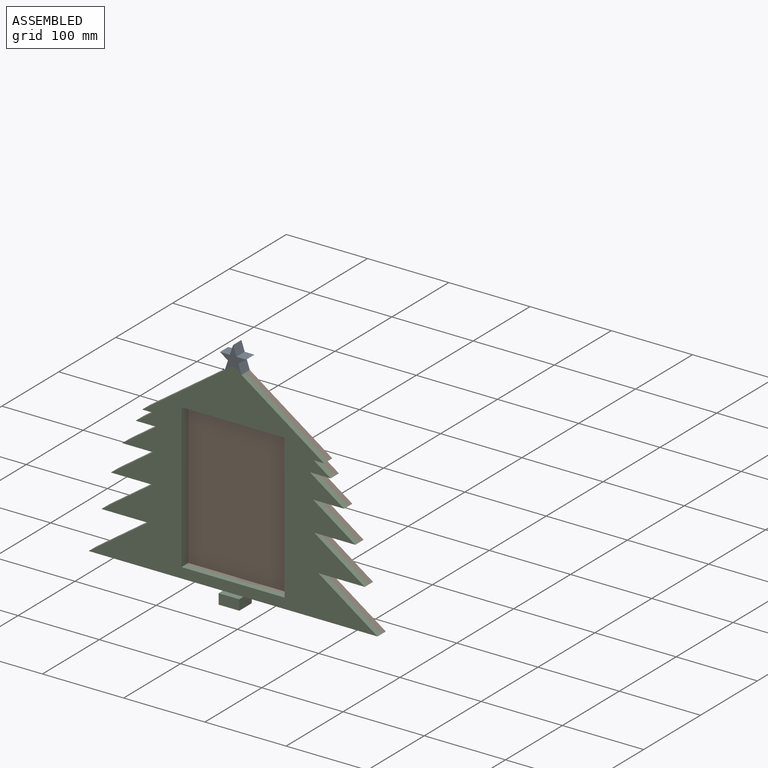
[diagram: assembled view]
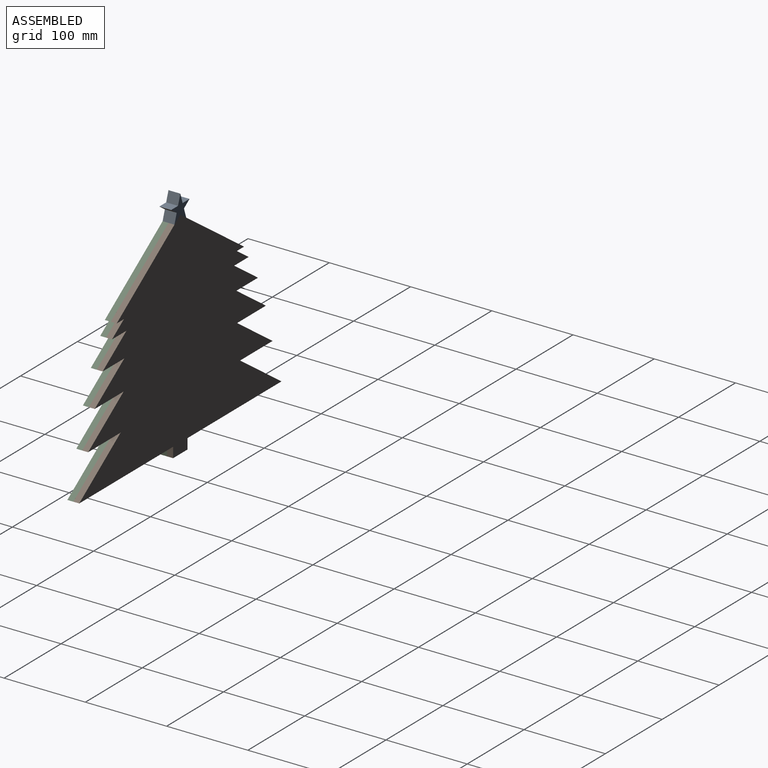
[diagram: assembled view, second angle]
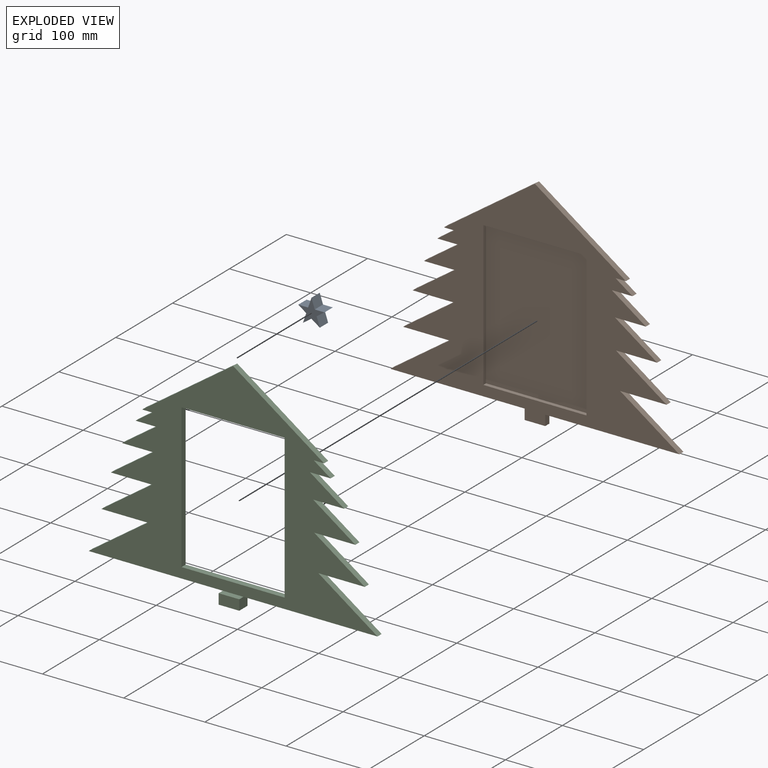
[diagram: exploded view]
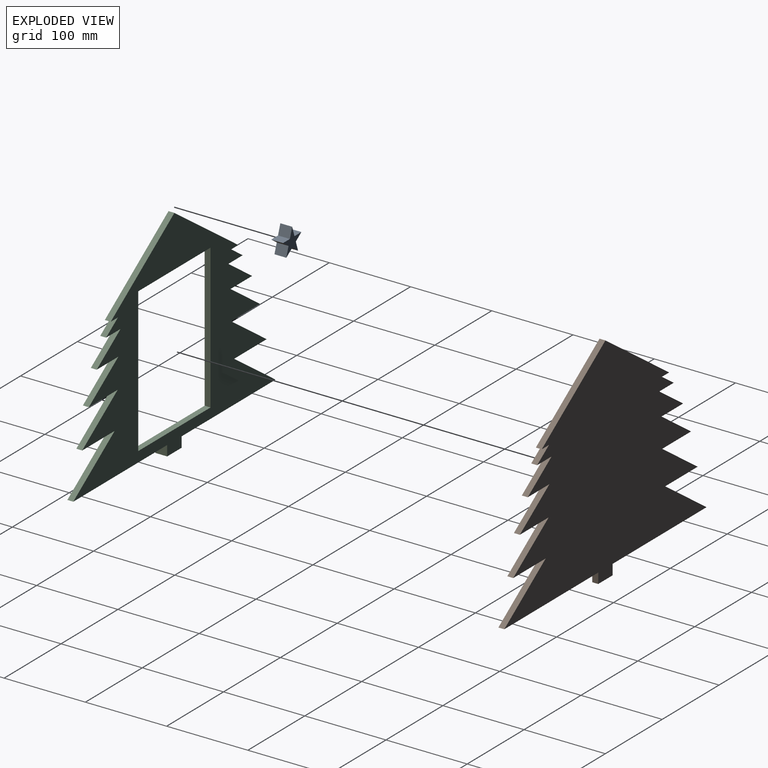
[diagram: exploded view, second angle]
ASSEMBLY  parts=3 mates=2
PART A: 12 faces, bbox 32.3x14.6x30.6 mm
  f0: plane 14.58x10.33mm, normal (-0.57,0,-0.82), area 183.9mm2, adj f1,f9,f10,f11
  f1: plane 14.58x11.71mm, normal (0.95,0,0.32), area 180.1mm2, adj f0,f2,f10,f11
  f2: plane 14.58x9.79mm, normal (0.57,0,-0.82), area 174.2mm2, adj f1,f3,f10,f11
  f3: plane 14.58x12.1mm, normal (0,0,1), area 176.3mm2, adj f2,f4,f10,f11
  f4: plane 14.58x12.04mm, normal (0.95,0,0.32), area 185.3mm2, adj f3,f5,f10,f11
  f5: plane 14.58x12.05mm, normal (-0.95,0,0.32), area 185.4mm2, adj f4,f6,f10,f11
  f6: plane 14.58x12.12mm, normal (0,0,1), area 176.7mm2, adj f5,f7,f10,f11
  f7: plane 14.58x9.8mm, normal (-0.57,0,-0.82), area 174.4mm2, adj f6,f8,f10,f11
  f8: plane 14.58x11.68mm, normal (-0.95,0,0.32), area 179.7mm2, adj f7,f9,f10,f11
  f9: plane 14.58x10.31mm, normal (0.57,0,-0.82), area 183.5mm2, adj f0,f8,f10,f11
  f10: plane 32.34x30.6mm, normal (0,1,0), area 324.2mm2, adj f0,f1,f2,f3,f4,f5,f6,f7
  f11: plane 32.34x30.6mm, normal (0,-1,0), area 324.2mm2, adj f0,f1,f2,f3,f4,f5,f6,f7
PART B: 34 faces, bbox 355.6x7.3x266.1 mm
  f0: plane 177.8x4.75mm, normal (-1,0,0), area 844.5mm2, adj f1,f30,f31,f33
  f1: plane 127x4.75mm, normal (0,0,1), area 603.2mm2, adj f0,f2,f31,f33
  f2: plane 177.8x4.75mm, normal (1,0,0), area 844.5mm2, adj f1,f30,f31,f33
  f3: plane 12.7x7.29mm, normal (1,0,0), area 92.6mm2, adj f4,f29,f31,f32
  f4: plane 165.1x7.29mm, normal (0,0,-1), area 1203.5mm2, adj f3,f5,f31,f32
  f5: plane 72.82x50.99mm, normal (0.57,0,0.82), area 648.1mm2, adj f4,f6,f31,f32
  f6: plane 57.15x7.29mm, normal (0,0,-1), area 416.6mm2, adj f5,f7,f31,f32
  f7: plane 62.42x43.71mm, normal (0.57,0,0.82), area 555.5mm2, adj f6,f8,f31,f32
  f8: plane 50.8x7.29mm, normal (0,0,-1), area 370.3mm2, adj f7,f9,f31,f32
  f9: plane 52.02x36.42mm, normal (0.57,0,0.82), area 462.9mm2, adj f8,f10,f31,f32
  f10: plane 38.1x7.29mm, normal (0,0,-1), area 277.7mm2, adj f9,f11,f31,f32
  f11: plane 41.93x29.36mm, normal (0.57,0,0.82), area 373.1mm2, adj f10,f12,f31,f32
  f12: plane 25.4x7.29mm, normal (0,0,-1), area 185.2mm2, adj f11,f13,f31,f32
  f13: plane 20.81x14.57mm, normal (0.57,0,0.82), area 185.2mm2, adj f12,f14,f31,f32
  f14: plane 12.7x7.29mm, normal (0,0,-1), area 92.6mm2, adj f13,f15,f31,f32
  f15: plane 111.96x78.39mm, normal (0.57,0,0.82), area 996.3mm2, adj f14,f16,f31,f32
  f16: plane 111.96x78.39mm, normal (-0.57,0,0.82), area 996.3mm2, adj f15,f17,f31,f32
  f17: plane 12.7x7.29mm, normal (0,0,-1), area 92.6mm2, adj f16,f18,f31,f32
  f18: plane 20.81x14.57mm, normal (-0.57,0,0.82), area 185.2mm2, adj f17,f19,f31,f32
  f19: plane 25.4x7.29mm, normal (0,0,-1), area 185.2mm2, adj f18,f20,f31,f32
  f20: plane 41.93x29.36mm, normal (-0.57,0,0.82), area 373.1mm2, adj f19,f21,f31,f32
  f21: plane 38.1x7.29mm, normal (0,0,-1), area 277.7mm2, adj f20,f22,f31,f32
  f22: plane 52.02x36.42mm, normal (-0.57,0,0.82), area 462.9mm2, adj f21,f23,f31,f32
  f23: plane 50.8x7.29mm, normal (0,0,-1), area 370.3mm2, adj f22,f24,f31,f32
  f24: plane 62.42x43.71mm, normal (-0.57,0,0.82), area 555.5mm2, adj f23,f25,f31,f32
  f25: plane 57.15x7.29mm, normal (0,0,-1), area 416.6mm2, adj f24,f26,f31,f32
  f26: plane 72.82x50.99mm, normal (-0.57,0,0.82), area 648.1mm2, adj f25,f27,f31,f32
  f27: plane 165.1x7.29mm, normal (0,0,-1), area 1203.5mm2, adj f26,f28,f31,f32
  f28: plane 12.7x7.29mm, normal (-1,0,0), area 92.6mm2, adj f27,f29,f31,f32
  f29: plane 25.4x7.29mm, normal (0,0,-1), area 185.2mm2, adj f3,f28,f31,f32
  f30: plane 127x4.75mm, normal (0,0,-1), area 603.2mm2, adj f0,f2,f31,f33
  f31: plane 355.6x266.14mm, normal (0,-1,0), area 31435.2mm2, adj f0,f1,f2,f3,f4,f5,f6,f7
  f32: plane 355.6x266.14mm, normal (0,1,0), area 54015.8mm2, adj f3,f4,f5,f6,f7,f8,f9,f10
  f33: plane 177.8x127mm, normal (0,-1,0), area 22580.6mm2, adj f0,f1,f2,f30
PART C: 35 faces, bbox 355.6x14.6x266.1 mm
  f0: plane 355.6x253.44mm, normal (0,-1,0), area 31112.7mm2, adj f1,f2,f3,f6,f7,f8,f9,f10
  f1: plane 177.8x7.29mm, normal (-1,0,0), area 1296.1mm2, adj f0,f2,f31,f32
  f2: plane 127x7.29mm, normal (0,0,1), area 925.8mm2, adj f0,f1,f3,f32
  f3: plane 177.8x7.29mm, normal (1,0,0), area 1296.1mm2, adj f0,f2,f31,f32
  f4: plane 25.4x14.58mm, normal (0,0,-1), area 370.3mm2, adj f5,f30,f32,f34
  f5: plane 14.58x12.7mm, normal (1,0,0), area 185.2mm2, adj f4,f6,f32,f33,f34
  f6: plane 165.1x7.29mm, normal (0,0,-1), area 1203.5mm2, adj f0,f5,f7,f32
  f7: plane 72.82x50.99mm, normal (0.57,0,0.82), area 648.1mm2, adj f0,f6,f8,f32
  f8: plane 57.15x7.29mm, normal (0,0,-1), area 416.6mm2, adj f0,f7,f9,f32
  f9: plane 62.42x43.71mm, normal (0.57,0,0.82), area 555.5mm2, adj f0,f8,f10,f32
  f10: plane 50.8x7.29mm, normal (0,0,-1), area 370.3mm2, adj f0,f9,f11,f32
  f11: plane 52.02x36.42mm, normal (0.57,0,0.82), area 462.9mm2, adj f0,f10,f12,f32
  f12: plane 38.1x7.29mm, normal (0,0,-1), area 277.7mm2, adj f0,f11,f13,f32
  f13: plane 41.93x29.36mm, normal (0.57,0,0.82), area 373.1mm2, adj f0,f12,f14,f32
  f14: plane 25.4x7.29mm, normal (0,0,-1), area 185.2mm2, adj f0,f13,f15,f32
  f15: plane 20.81x14.57mm, normal (0.57,0,0.82), area 185.2mm2, adj f0,f14,f16,f32
  f16: plane 12.7x7.29mm, normal (0,0,-1), area 92.6mm2, adj f0,f15,f17,f32
  f17: plane 111.96x78.39mm, normal (0.57,0,0.82), area 996.3mm2, adj f0,f16,f18,f32
  f18: plane 111.96x78.39mm, normal (-0.57,0,0.82), area 996.3mm2, adj f0,f17,f19,f32
  f19: plane 12.7x7.29mm, normal (0,0,-1), area 92.6mm2, adj f0,f18,f20,f32
  f20: plane 20.81x14.57mm, normal (-0.57,0,0.82), area 185.2mm2, adj f0,f19,f21,f32
  f21: plane 25.4x7.29mm, normal (0,0,-1), area 185.2mm2, adj f0,f20,f22,f32
  f22: plane 41.93x29.36mm, normal (-0.57,0,0.82), area 373.1mm2, adj f0,f21,f23,f32
  f23: plane 38.1x7.29mm, normal (0,0,-1), area 277.7mm2, adj f0,f22,f24,f32
  f24: plane 52.02x36.42mm, normal (-0.57,0,0.82), area 462.9mm2, adj f0,f23,f25,f32
  f25: plane 50.8x7.29mm, normal (0,0,-1), area 370.3mm2, adj f0,f24,f26,f32
  f26: plane 62.42x43.71mm, normal (-0.57,0,0.82), area 555.5mm2, adj f0,f25,f27,f32
  f27: plane 57.15x7.29mm, normal (0,0,-1), area 416.6mm2, adj f0,f26,f28,f32
  f28: plane 72.82x50.99mm, normal (-0.57,0,0.82), area 648.1mm2, adj f0,f27,f29,f32
  f29: plane 165.1x7.29mm, normal (0,0,-1), area 1203.5mm2, adj f0,f28,f30,f32
  f30: plane 14.58x12.7mm, normal (-1,0,0), area 185.2mm2, adj f4,f29,f32,f33,f34
  f31: plane 127x7.29mm, normal (0,0,-1), area 925.8mm2, adj f0,f1,f3,f32
  f32: plane 355.6x266.14mm, normal (0,1,0), area 31435.2mm2, adj f1,f2,f3,f4,f5,f6,f7,f8
  f33: plane 25.4x7.29mm, normal (0,0,1), area 185.2mm2, adj f0,f5,f30,f34
  f34: plane 25.4x12.7mm, normal (0,-1,0), area 322.6mm2, adj f4,f5,f30,f33
PLACE A t=(-128.11,-67.44,82.72)mm
PLACE B t=(-128.11,-52.86,82.72)mm
PLACE C t=(-128.11,-60.15,82.72)mm
MATE fastened B.f31 <-> C.f32  axis (0,-1,0) through (-128.11,-60.15,171.62)mm
MATE fastened A.f11 <-> C.f0  axis (0,-1,0) through (-128.11,-67.44,234.56)mm
